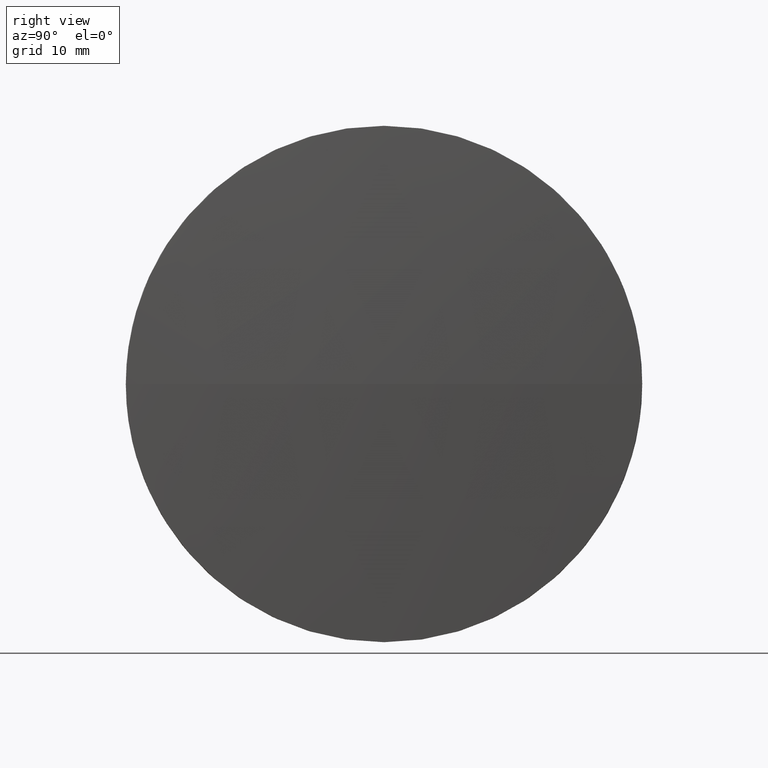
[diagram: clean part render]
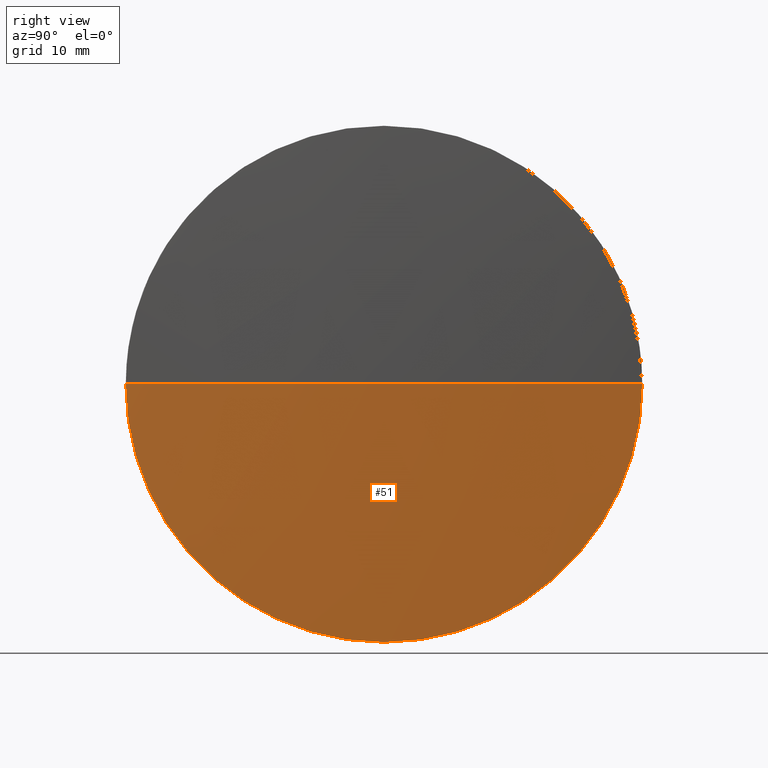
[diagram: same view with one face highlighted and labeled with its STEP entity id]
A machine part, right view. The second image highlights one B-rep face of the part: STEP entity #51.
In plain terms, the highlighted spherical surface has radius 358.872 mm.
Its self-contained STEP definition (entity closure, byte-faithful):
#5 = VERTEX_POINT ( 'NONE', #83 ) ;
#9 = CARTESIAN_POINT ( 'NONE',  ( -122.9514021429779800, 130.4671098528241900, 0.0000000000000000000 ) ) ;
#11 = DIRECTION ( 'NONE',  ( 0.0000000000000000000, 0.0000000000000000000, 1.000000000000000000 ) ) ;
#23 = CARTESIAN_POINT ( 'NONE',  ( -122.9514021429779800, 130.4671098528241900, 0.0000000000000000000 ) ) ;
#29 = EDGE_CURVE ( 'NONE', #154, #5, #132, .T. ) ;
#35 = CIRCLE ( 'NONE', #81, 25.40000000000000600 ) ;
#42 = DIRECTION ( 'NONE',  ( -0.0000000000000000000, 0.0000000000000000000, 1.000000000000000000 ) ) ;
#43 = AXIS2_PLACEMENT_3D ( 'NONE', #9, #70, #184 ) ;
#48 = FACE_OUTER_BOUND ( 'NONE', #91, .T. ) ;
#51 = ADVANCED_FACE ( 'NONE', ( #48 ), #79, .T. ) ;
#54 = AXIS2_PLACEMENT_3D ( 'NONE', #65, #87, #11 ) ;
#56 = AXIS2_PLACEMENT_3D ( 'NONE', #23, #157, #74 ) ;
#64 = EDGE_CURVE ( 'NONE', #154, #174, #75, .T. ) ;
#65 = CARTESIAN_POINT ( 'NONE',  ( 235.0208200792423800, 130.4671098528243900, 0.0000000000000000000 ) ) ;
#70 = DIRECTION ( 'NONE',  ( 0.0000000000000000000, 1.224646799147353200E-016, -1.000000000000000000 ) ) ;
#74 = DIRECTION ( 'NONE',  ( 0.0000000000000000000, 1.000000000000000000, 0.0000000000000000000 ) ) ;
#75 = CIRCLE ( 'NONE', #43, 358.8722222222203900 ) ;
#79 = SPHERICAL_SURFACE ( 'NONE', #56, 358.8722222222203900 ) ;
#81 = AXIS2_PLACEMENT_3D ( 'NONE', #125, #156, #98 ) ;
#83 = CARTESIAN_POINT ( 'NONE',  ( 235.0208200792423800, 155.8671098528243700, 0.0000000000000000000 ) ) ;
#86 = CARTESIAN_POINT ( 'NONE',  ( 235.0208200792423800, 130.4671098528243900, -25.40000000000000600 ) ) ;
#87 = DIRECTION ( 'NONE',  ( -1.000000000000000000, -0.0000000000000000000, -0.0000000000000000000 ) ) ;
#91 = EDGE_LOOP ( 'NONE', ( #152, #144, #175, #179 ) ) ;
#96 = EDGE_CURVE ( 'NONE', #5, #165, #35, .T. ) ;
#98 = DIRECTION ( 'NONE',  ( 0.0000000000000000000, 0.0000000000000000000, 1.000000000000000000 ) ) ;
#106 = CARTESIAN_POINT ( 'NONE',  ( 235.9208200792423900, 130.4671098528242200, 0.0000000000000000000 ) ) ;
#111 = CARTESIAN_POINT ( 'NONE',  ( -122.9514021429779800, 130.4671098528241900, 0.0000000000000000000 ) ) ;
#124 = EDGE_CURVE ( 'NONE', #165, #174, #163, .T. ) ;
#125 = CARTESIAN_POINT ( 'NONE',  ( 235.0208200792423800, 130.4671098528243900, 0.0000000000000000000 ) ) ;
#132 = CIRCLE ( 'NONE', #137, 358.8722222222203900 ) ;
#133 = CARTESIAN_POINT ( 'NONE',  ( 235.0208200792423800, 105.0671098528242300, -3.110602869834272100E-015 ) ) ;
#137 = AXIS2_PLACEMENT_3D ( 'NONE', #111, #42, #142 ) ;
#142 = DIRECTION ( 'NONE',  ( 1.000000000000000000, 0.0000000000000000000, 0.0000000000000000000 ) ) ;
#144 = ORIENTED_EDGE ( 'NONE', *, *, #64, .T. ) ;
#152 = ORIENTED_EDGE ( 'NONE', *, *, #29, .F. ) ;
#154 = VERTEX_POINT ( 'NONE', #106 ) ;
#156 = DIRECTION ( 'NONE',  ( -1.000000000000000000, -0.0000000000000000000, -0.0000000000000000000 ) ) ;
#157 = DIRECTION ( 'NONE',  ( -0.0000000000000000000, 0.0000000000000000000, -1.000000000000000000 ) ) ;
#163 = CIRCLE ( 'NONE', #54, 25.40000000000000600 ) ;
#165 = VERTEX_POINT ( 'NONE', #86 ) ;
#174 = VERTEX_POINT ( 'NONE', #133 ) ;
#175 = ORIENTED_EDGE ( 'NONE', *, *, #124, .F. ) ;
#179 = ORIENTED_EDGE ( 'NONE', *, *, #96, .F. ) ;
#184 = DIRECTION ( 'NONE',  ( 0.0000000000000000000, 1.000000000000000000, 1.224646799147353000E-016 ) ) ;